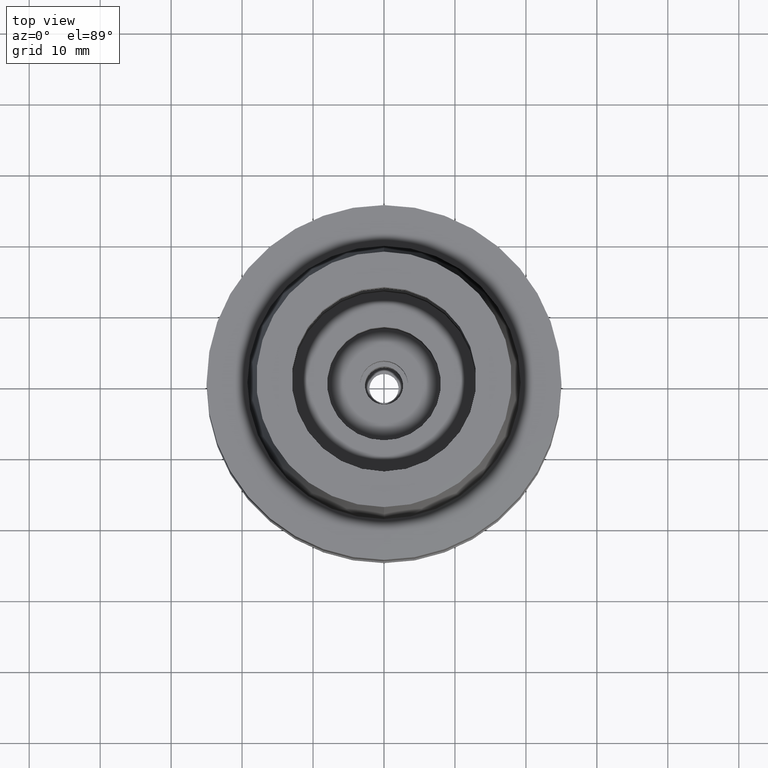
[diagram: clean part render]
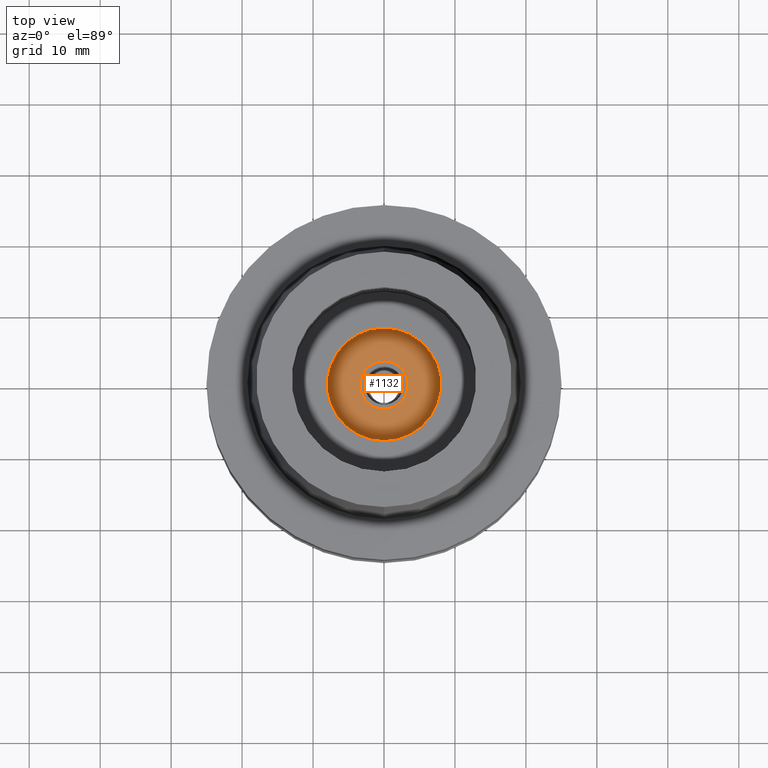
[diagram: same view with one face highlighted and labeled with its STEP entity id]
A machine part, top view. The second image highlights one B-rep face of the part: STEP entity #1132.
In plain terms, the highlighted planar face has unit normal (0, 0, 1).
Its self-contained STEP definition (entity closure, byte-faithful):
#11 = CIRCLE ( 'NONE', #1208, 3.399999999999999911 ) ;
#23 = CARTESIAN_POINT ( 'NONE',  ( 0.0000000000000000000, 0.0000000000000000000, -19.94999999999999929 ) ) ;
#65 = DIRECTION ( 'NONE',  ( 0.0000000000000000000, 0.0000000000000000000, -1.000000000000000000 ) ) ;
#148 = FACE_OUTER_BOUND ( 'NONE', #568, .T. ) ;
#179 = EDGE_CURVE ( 'NONE', #1847, #617, #11, .T. ) ;
#244 = AXIS2_PLACEMENT_3D ( 'NONE', #2341, #1087, #1909 ) ;
#277 = CIRCLE ( 'NONE', #1588, 8.000000000000000000 ) ;
#398 = ORIENTED_EDGE ( 'NONE', *, *, #2524, .F. ) ;
#508 = CARTESIAN_POINT ( 'NONE',  ( 0.0000000000000000000, -8.000000000000000000, -19.94999999999999929 ) ) ;
#539 = EDGE_LOOP ( 'NONE', ( #1989, #398 ) ) ;
#568 = EDGE_LOOP ( 'NONE', ( #963, #1583 ) ) ;
#582 = FACE_BOUND ( 'NONE', #539, .T. ) ;
#589 = CIRCLE ( 'NONE', #244, 8.000000000000000000 ) ;
#617 = VERTEX_POINT ( 'NONE', #1652 ) ;
#635 = DIRECTION ( 'NONE',  ( 0.0000000000000000000, 0.0000000000000000000, 1.000000000000000000 ) ) ;
#814 = DIRECTION ( 'NONE',  ( 0.0000000000000000000, 0.0000000000000000000, 1.000000000000000000 ) ) ;
#942 = AXIS2_PLACEMENT_3D ( 'NONE', #23, #635, #1465 ) ;
#963 = ORIENTED_EDGE ( 'NONE', *, *, #1433, .F. ) ;
#1069 = EDGE_CURVE ( 'NONE', #1765, #1262, #589, .T. ) ;
#1087 = DIRECTION ( 'NONE',  ( 0.0000000000000000000, 0.0000000000000000000, -1.000000000000000000 ) ) ;
#1089 = CARTESIAN_POINT ( 'NONE',  ( 0.0000000000000000000, 0.0000000000000000000, -19.94999999999999929 ) ) ;
#1120 = CIRCLE ( 'NONE', #942, 3.399999999999999911 ) ;
#1132 = ADVANCED_FACE ( 'NONE', ( #148, #582 ), #1426, .T. ) ;
#1208 = AXIS2_PLACEMENT_3D ( 'NONE', #1089, #1742, #1943 ) ;
#1262 = VERTEX_POINT ( 'NONE', #2215 ) ;
#1338 = AXIS2_PLACEMENT_3D ( 'NONE', #2444, #814, #2262 ) ;
#1426 = PLANE ( 'NONE',  #1338 ) ;
#1433 = EDGE_CURVE ( 'NONE', #1262, #1765, #277, .T. ) ;
#1465 = DIRECTION ( 'NONE',  ( 0.0000000000000000000, -1.000000000000000000, 0.0000000000000000000 ) ) ;
#1583 = ORIENTED_EDGE ( 'NONE', *, *, #1069, .F. ) ;
#1588 = AXIS2_PLACEMENT_3D ( 'NONE', #2362, #65, #2386 ) ;
#1652 = CARTESIAN_POINT ( 'NONE',  ( 0.0000000000000000000, -3.399999999999999911, -19.94999999999999929 ) ) ;
#1742 = DIRECTION ( 'NONE',  ( 0.0000000000000000000, 0.0000000000000000000, 1.000000000000000000 ) ) ;
#1765 = VERTEX_POINT ( 'NONE', #508 ) ;
#1847 = VERTEX_POINT ( 'NONE', #2103 ) ;
#1909 = DIRECTION ( 'NONE',  ( 0.0000000000000000000, -1.000000000000000000, 0.0000000000000000000 ) ) ;
#1943 = DIRECTION ( 'NONE',  ( 0.0000000000000000000, 1.000000000000000000, 0.0000000000000000000 ) ) ;
#1989 = ORIENTED_EDGE ( 'NONE', *, *, #179, .F. ) ;
#2103 = CARTESIAN_POINT ( 'NONE',  ( 0.0000000000000000000, 3.399999999999999911, -19.94999999999999929 ) ) ;
#2215 = CARTESIAN_POINT ( 'NONE',  ( 0.0000000000000000000, 8.000000000000000000, -19.94999999999999929 ) ) ;
#2262 = DIRECTION ( 'NONE',  ( 1.000000000000000000, 0.0000000000000000000, 0.0000000000000000000 ) ) ;
#2341 = CARTESIAN_POINT ( 'NONE',  ( 0.0000000000000000000, 0.0000000000000000000, -19.94999999999999929 ) ) ;
#2362 = CARTESIAN_POINT ( 'NONE',  ( 0.0000000000000000000, 0.0000000000000000000, -19.94999999999999929 ) ) ;
#2386 = DIRECTION ( 'NONE',  ( 0.0000000000000000000, 1.000000000000000000, 0.0000000000000000000 ) ) ;
#2444 = CARTESIAN_POINT ( 'NONE',  ( 0.0000000000000000000, 0.0000000000000000000, -19.94999999999999929 ) ) ;
#2524 = EDGE_CURVE ( 'NONE', #617, #1847, #1120, .T. ) ;